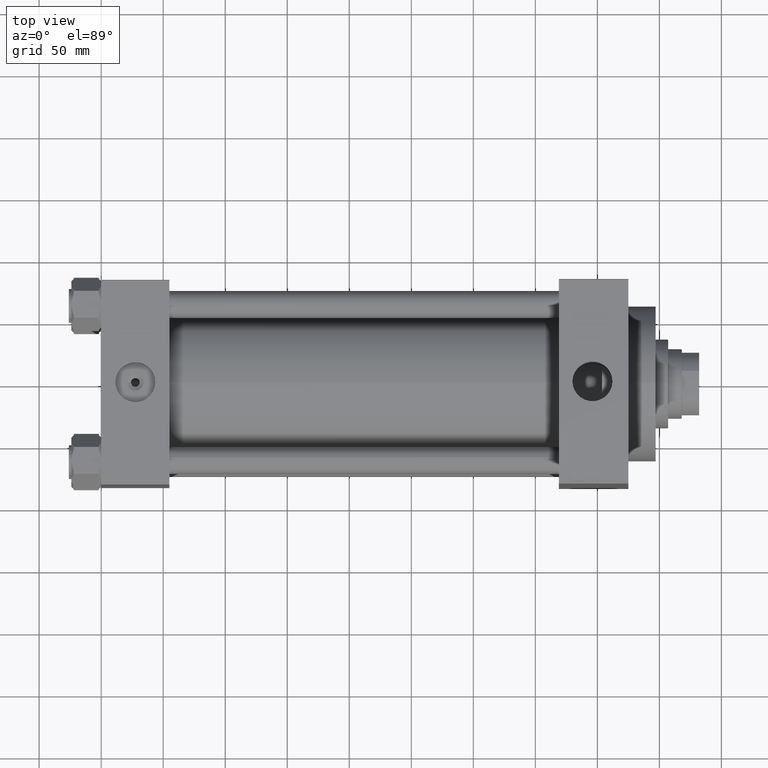
[diagram: clean part render]
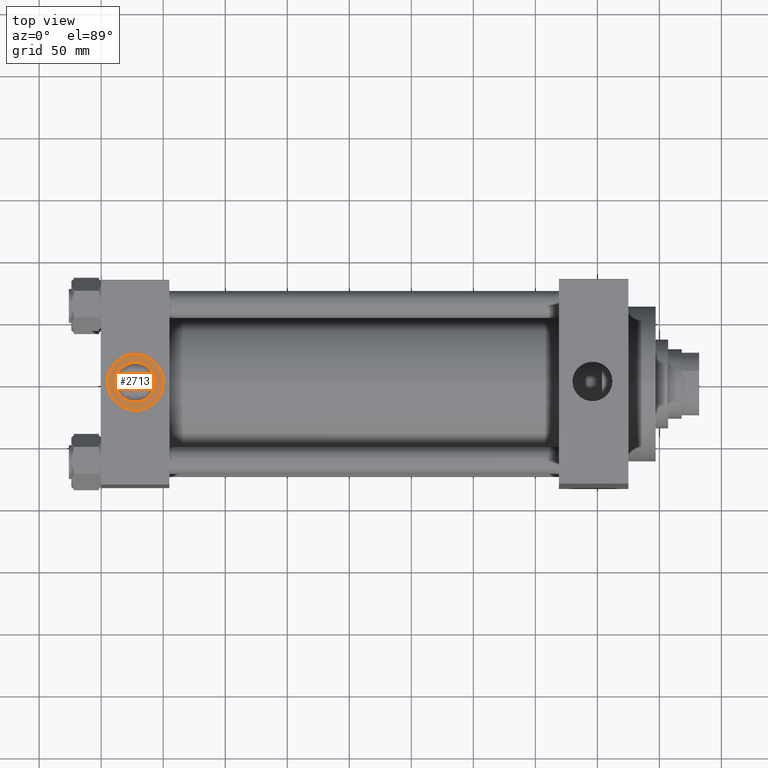
[diagram: same view with one face highlighted and labeled with its STEP entity id]
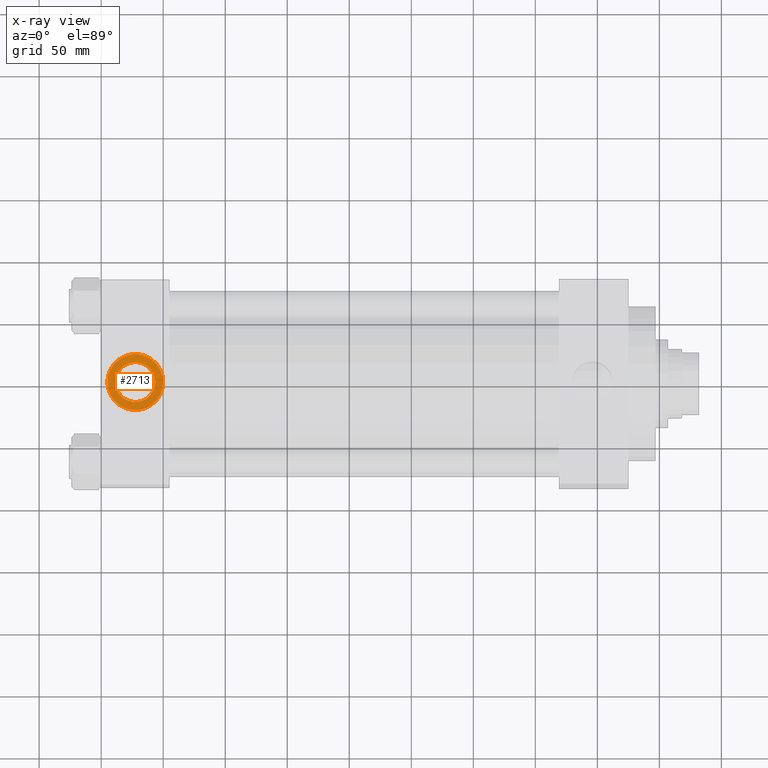
[diagram: x-ray of the same camera — body ghosted, the highlighted face saturated]
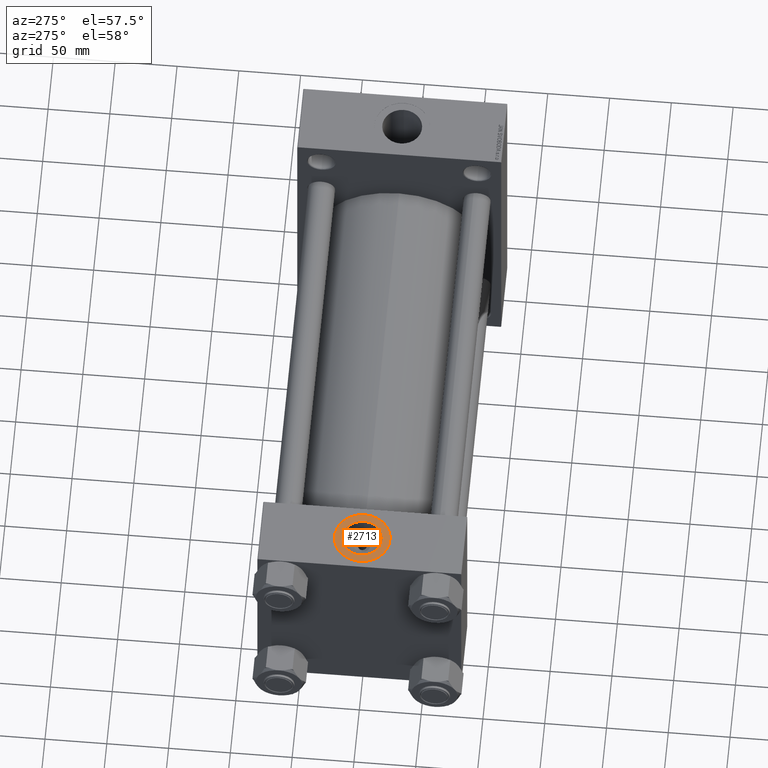
[diagram: same view with one face highlighted and labeled with its STEP entity id]
A machine part, top view. The second image highlights one B-rep face of the part: STEP entity #2713.
The next image is the same camera in x-ray: the body ghosted, the highlighted face saturated — about 0% of this face is hidden behind the body in this view.
A second angle (auxiliary view) of the same face is appended — the face is thin or edge-on in the first view.
In plain terms, the highlighted planar face has unit normal (0, 0, 1).
Its self-contained STEP definition (entity closure, byte-faithful):
#755 = CIRCLE ( 'NONE', #42491, 16.12000000000000455 ) ;
#1421 = CARTESIAN_POINT ( 'NONE',  ( 27.50000000000000000, -8.673617379884037050E-15, 82.30000000000001137 ) ) ;
#2713 = ADVANCED_FACE ( 'NONE', ( #4237, #33749 ), #25263, .T. ) ;
#3753 = AXIS2_PLACEMENT_3D ( 'NONE', #1421, #39155, #8676 ) ;
#4237 = FACE_BOUND ( 'NONE', #18361, .T. ) ;
#7572 = EDGE_CURVE ( 'NONE', #32123, #46262, #47343, .T. ) ;
#8676 = DIRECTION ( 'NONE',  ( 1.000000000000000000, 0.000000000000000000, 0.000000000000000000 ) ) ;
#9455 = DIRECTION ( 'NONE',  ( 1.000000000000000000, 0.000000000000000000, 0.000000000000000000 ) ) ;
#9698 = EDGE_CURVE ( 'NONE', #46262, #32123, #24228, .T. ) ;
#11300 = ORIENTED_EDGE ( 'NONE', *, *, #7572, .T. ) ;
#11312 = ORIENTED_EDGE ( 'NONE', *, *, #36555, .F. ) ;
#12598 = AXIS2_PLACEMENT_3D ( 'NONE', #43514, #17365, #24404 ) ;
#13553 = EDGE_LOOP ( 'NONE', ( #35620, #11300 ) ) ;
#15984 = CARTESIAN_POINT ( 'NONE',  ( 27.50000000000000000, -8.673617379884037050E-15, 82.30000000000001137 ) ) ;
#17365 = DIRECTION ( 'NONE',  ( 0.000000000000000000, 0.000000000000000000, 1.000000000000000000 ) ) ;
#18361 = EDGE_LOOP ( 'NONE', ( #11312, #46583 ) ) ;
#18612 = VERTEX_POINT ( 'NONE', #22778 ) ;
#20669 = DIRECTION ( 'NONE',  ( 1.000000000000000000, 0.000000000000000000, 0.000000000000000000 ) ) ;
#22778 = CARTESIAN_POINT ( 'NONE',  ( 11.37999999999999012, -6.699486739658503022E-15, 82.30000000000001137 ) ) ;
#24228 = CIRCLE ( 'NONE', #26538, 22.50000000000000355 ) ;
#24404 = DIRECTION ( 'NONE',  ( 1.000000000000000000, 0.000000000000000000, 0.000000000000000000 ) ) ;
#25263 = PLANE ( 'NONE',  #44101 ) ;
#26538 = AXIS2_PLACEMENT_3D ( 'NONE', #15984, #30752, #9455 ) ;
#28646 = CARTESIAN_POINT ( 'NONE',  ( 27.50000000000000000, -8.673617379884037050E-15, 82.30000000000001137 ) ) ;
#30752 = DIRECTION ( 'NONE',  ( 0.000000000000000000, 0.000000000000000000, 1.000000000000000000 ) ) ;
#32123 = VERTEX_POINT ( 'NONE', #45464 ) ;
#33108 = CIRCLE ( 'NONE', #3753, 16.12000000000000455 ) ;
#33749 = FACE_OUTER_BOUND ( 'NONE', #13553, .T. ) ;
#35620 = ORIENTED_EDGE ( 'NONE', *, *, #9698, .T. ) ;
#36555 = EDGE_CURVE ( 'NONE', #44211, #18612, #33108, .T. ) ;
#37900 = CARTESIAN_POINT ( 'NONE',  ( 43.62000000000000455, -8.673617379884037050E-15, 82.30000000000001137 ) ) ;
#39155 = DIRECTION ( 'NONE',  ( 0.000000000000000000, 0.000000000000000000, 1.000000000000000000 ) ) ;
#40464 = EDGE_CURVE ( 'NONE', #18612, #44211, #755, .T. ) ;
#41980 = DIRECTION ( 'NONE',  ( 0.000000000000000000, 0.000000000000000000, 1.000000000000000000 ) ) ;
#42491 = AXIS2_PLACEMENT_3D ( 'NONE', #28646, #46350, #20669 ) ;
#43514 = CARTESIAN_POINT ( 'NONE',  ( 27.50000000000000000, -8.673617379884037050E-15, 82.30000000000001137 ) ) ;
#44101 = AXIS2_PLACEMENT_3D ( 'NONE', #47545, #41980, #45599 ) ;
#44211 = VERTEX_POINT ( 'NONE', #37900 ) ;
#45464 = CARTESIAN_POINT ( 'NONE',  ( 4.999999999999993783, -5.918162081802491483E-15, 82.30000000000001137 ) ) ;
#45599 = DIRECTION ( 'NONE',  ( 1.000000000000000000, 0.000000000000000000, -0.000000000000000000 ) ) ;
#46262 = VERTEX_POINT ( 'NONE', #47029 ) ;
#46350 = DIRECTION ( 'NONE',  ( 0.000000000000000000, 0.000000000000000000, 1.000000000000000000 ) ) ;
#46583 = ORIENTED_EDGE ( 'NONE', *, *, #40464, .F. ) ;
#47029 = CARTESIAN_POINT ( 'NONE',  ( 50.00000000000000000, -8.673617379884037050E-15, 82.30000000000001137 ) ) ;
#47343 = CIRCLE ( 'NONE', #12598, 22.50000000000000355 ) ;
#47545 = CARTESIAN_POINT ( 'NONE',  ( 27.50000000000000000, -8.673617379884037050E-15, 82.30000000000001137 ) ) ;